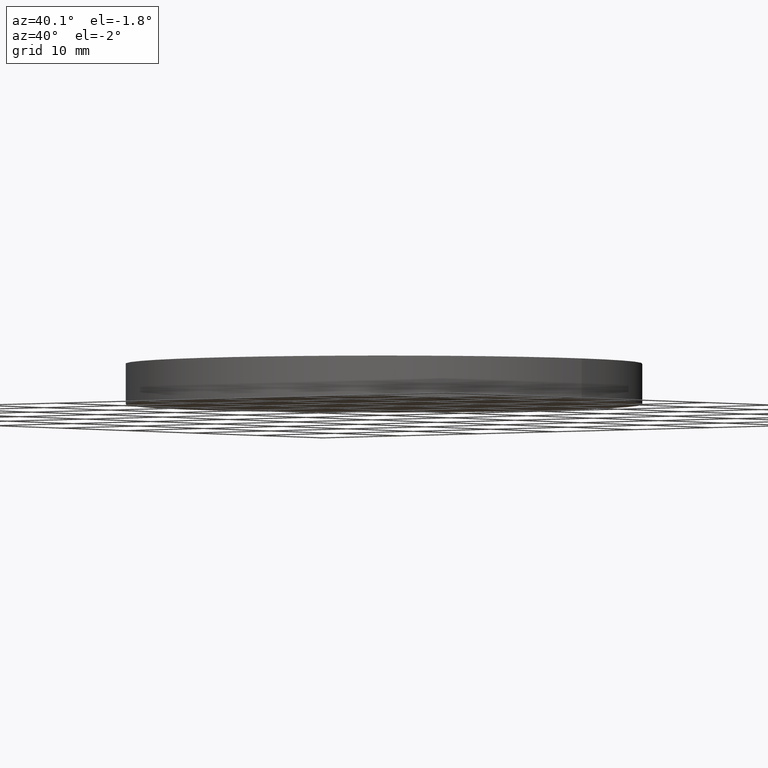
[diagram: clean part render]
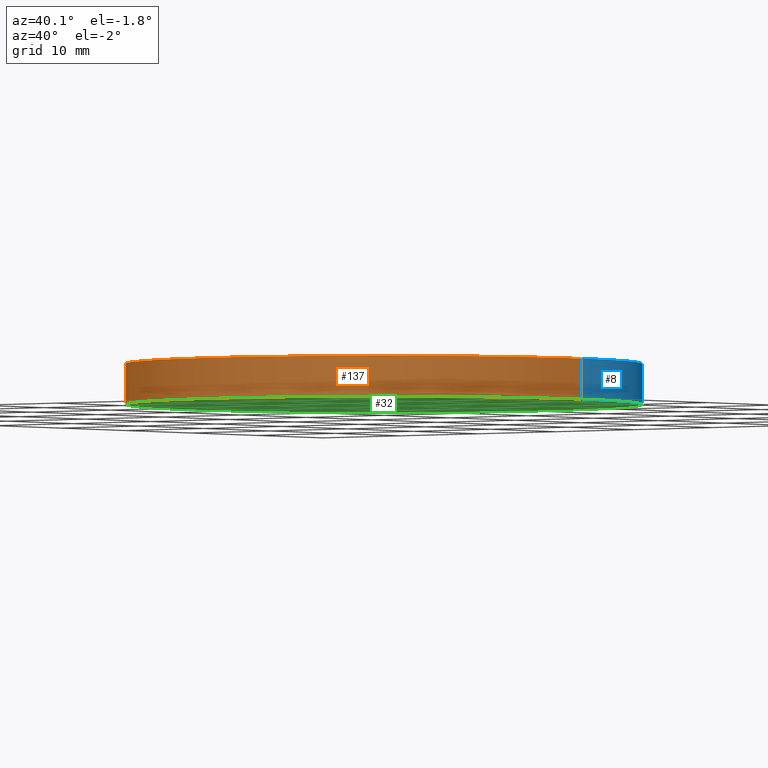
[diagram: same view with three faces highlighted in distinct colors, each labeled with its STEP entity id]
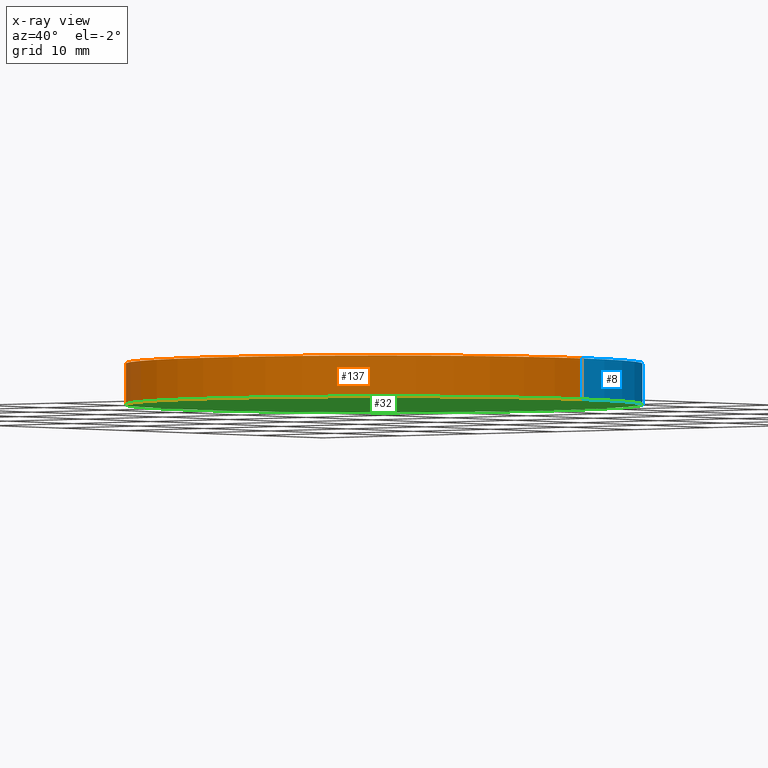
[diagram: x-ray of the same camera — body ghosted, the three highlighted faces saturated]
A machine part, auxiliary view with three faces highlighted in distinct colors.
The next image is the same camera in x-ray (body ghosted, the three faces saturated) — at least one of them is partly hidden behind the body in this view.
Their STEP definitions:

[orange] entity #137 — the highlighted cylindrical surface (partial cylindrical patch) has radius 25.4 mm, axis along (-0, -0, -1).
#1 = CIRCLE ( 'NONE', #42, 25.39999999999999900 ) ;
#7 = CARTESIAN_POINT ( 'NONE',  ( 0.0000000000000000000, 0.0000000000000000000, 4.000000000000000000 ) ) ;
#9 = ORIENTED_EDGE ( 'NONE', *, *, #27, .T. ) ;
#12 = CIRCLE ( 'NONE', #14, 25.39999999999999900 ) ;
#14 = AXIS2_PLACEMENT_3D ( 'NONE', #128, #25, #127 ) ;
#16 = LINE ( 'NONE', #90, #84 ) ;
#18 = DIRECTION ( 'NONE',  ( 0.0000000000000000000, 0.0000000000000000000, 1.000000000000000000 ) ) ;
#19 = CARTESIAN_POINT ( 'NONE',  ( -25.39999999999999900, 0.0000000000000000000, 4.000000000000000000 ) ) ;
#24 = DIRECTION ( 'NONE',  ( 1.000000000000000000, 0.0000000000000000000, 0.0000000000000000000 ) ) ;
#25 = DIRECTION ( 'NONE',  ( 0.0000000000000000000, 0.0000000000000000000, 1.000000000000000000 ) ) ;
#26 = VECTOR ( 'NONE', #54, 1000.000000000000000 ) ;
#27 = EDGE_CURVE ( 'NONE', #102, #50, #12, .T. ) ;
#38 = ORIENTED_EDGE ( 'NONE', *, *, #97, .T. ) ;
#39 = EDGE_LOOP ( 'NONE', ( #58, #79, #38, #9 ) ) ;
#42 = AXIS2_PLACEMENT_3D ( 'NONE', #7, #18, #24 ) ;
#46 = CARTESIAN_POINT ( 'NONE',  ( 25.39999999999999900, 3.110602869834276900E-015, 4.000000000000000000 ) ) ;
#50 = VERTEX_POINT ( 'NONE', #106 ) ;
#54 = DIRECTION ( 'NONE',  ( -0.0000000000000000000, -0.0000000000000000000, -1.000000000000000000 ) ) ;
#58 = ORIENTED_EDGE ( 'NONE', *, *, #87, .F. ) ;
#60 = DIRECTION ( 'NONE',  ( -0.0000000000000000000, -0.0000000000000000000, -1.000000000000000000 ) ) ;
#61 = AXIS2_PLACEMENT_3D ( 'NONE', #68, #60, #99 ) ;
#63 = CARTESIAN_POINT ( 'NONE',  ( -25.39999999999999900, 0.0000000000000000000, 0.0000000000000000000 ) ) ;
#66 = VERTEX_POINT ( 'NONE', #135 ) ;
#68 = CARTESIAN_POINT ( 'NONE',  ( 0.0000000000000000000, 0.0000000000000000000, 4.000000000000000000 ) ) ;
#69 = LINE ( 'NONE', #19, #26 ) ;
#79 = ORIENTED_EDGE ( 'NONE', *, *, #124, .F. ) ;
#84 = VECTOR ( 'NONE', #107, 1000.000000000000000 ) ;
#87 = EDGE_CURVE ( 'NONE', #109, #50, #16, .T. ) ;
#90 = CARTESIAN_POINT ( 'NONE',  ( 25.39999999999999900, 3.110602869834276900E-015, 4.000000000000000000 ) ) ;
#93 = FACE_OUTER_BOUND ( 'NONE', #39, .T. ) ;
#97 = EDGE_CURVE ( 'NONE', #66, #102, #69, .T. ) ;
#99 = DIRECTION ( 'NONE',  ( -1.000000000000000000, 0.0000000000000000000, 0.0000000000000000000 ) ) ;
#102 = VERTEX_POINT ( 'NONE', #63 ) ;
#106 = CARTESIAN_POINT ( 'NONE',  ( 25.39999999999999900, 3.110602869834276900E-015, 0.0000000000000000000 ) ) ;
#107 = DIRECTION ( 'NONE',  ( -0.0000000000000000000, -0.0000000000000000000, -1.000000000000000000 ) ) ;
#109 = VERTEX_POINT ( 'NONE', #46 ) ;
#122 = CYLINDRICAL_SURFACE ( 'NONE', #61, 25.39999999999999900 ) ;
#124 = EDGE_CURVE ( 'NONE', #66, #109, #1, .T. ) ;
#127 = DIRECTION ( 'NONE',  ( 1.000000000000000000, 0.0000000000000000000, 0.0000000000000000000 ) ) ;
#128 = CARTESIAN_POINT ( 'NONE',  ( 0.0000000000000000000, 0.0000000000000000000, 0.0000000000000000000 ) ) ;
#135 = CARTESIAN_POINT ( 'NONE',  ( -25.39999999999999900, 0.0000000000000000000, 4.000000000000000000 ) ) ;
#137 = ADVANCED_FACE ( 'NONE', ( #93 ), #122, .T. ) ;

[blue] entity #8 — the highlighted cylindrical surface (partial cylindrical patch) has radius 25.4 mm, axis along (-0, -0, -1).
#4 = DIRECTION ( 'NONE',  ( 0.0000000000000000000, 0.0000000000000000000, 1.000000000000000000 ) ) ;
#6 = CARTESIAN_POINT ( 'NONE',  ( 0.0000000000000000000, 0.0000000000000000000, 4.000000000000000000 ) ) ;
#8 = ADVANCED_FACE ( 'NONE', ( #73 ), #125, .T. ) ;
#15 = CARTESIAN_POINT ( 'NONE',  ( 0.0000000000000000000, 0.0000000000000000000, 0.0000000000000000000 ) ) ;
#16 = LINE ( 'NONE', #90, #84 ) ;
#19 = CARTESIAN_POINT ( 'NONE',  ( -25.39999999999999900, 0.0000000000000000000, 4.000000000000000000 ) ) ;
#22 = DIRECTION ( 'NONE',  ( 1.000000000000000000, 0.0000000000000000000, 0.0000000000000000000 ) ) ;
#26 = VECTOR ( 'NONE', #54, 1000.000000000000000 ) ;
#28 = AXIS2_PLACEMENT_3D ( 'NONE', #15, #80, #52 ) ;
#30 = CIRCLE ( 'NONE', #36, 25.39999999999999900 ) ;
#36 = AXIS2_PLACEMENT_3D ( 'NONE', #115, #4, #22 ) ;
#43 = EDGE_LOOP ( 'NONE', ( #117, #110, #89, #64 ) ) ;
#45 = CIRCLE ( 'NONE', #28, 25.39999999999999900 ) ;
#46 = CARTESIAN_POINT ( 'NONE',  ( 25.39999999999999900, 3.110602869834276900E-015, 4.000000000000000000 ) ) ;
#50 = VERTEX_POINT ( 'NONE', #106 ) ;
#51 = DIRECTION ( 'NONE',  ( -0.0000000000000000000, -0.0000000000000000000, -1.000000000000000000 ) ) ;
#52 = DIRECTION ( 'NONE',  ( 1.000000000000000000, 0.0000000000000000000, 0.0000000000000000000 ) ) ;
#54 = DIRECTION ( 'NONE',  ( -0.0000000000000000000, -0.0000000000000000000, -1.000000000000000000 ) ) ;
#63 = CARTESIAN_POINT ( 'NONE',  ( -25.39999999999999900, 0.0000000000000000000, 0.0000000000000000000 ) ) ;
#64 = ORIENTED_EDGE ( 'NONE', *, *, #97, .F. ) ;
#66 = VERTEX_POINT ( 'NONE', #135 ) ;
#69 = LINE ( 'NONE', #19, #26 ) ;
#72 = AXIS2_PLACEMENT_3D ( 'NONE', #6, #51, #140 ) ;
#73 = FACE_OUTER_BOUND ( 'NONE', #43, .T. ) ;
#80 = DIRECTION ( 'NONE',  ( 0.0000000000000000000, 0.0000000000000000000, 1.000000000000000000 ) ) ;
#84 = VECTOR ( 'NONE', #107, 1000.000000000000000 ) ;
#87 = EDGE_CURVE ( 'NONE', #109, #50, #16, .T. ) ;
#89 = ORIENTED_EDGE ( 'NONE', *, *, #104, .T. ) ;
#90 = CARTESIAN_POINT ( 'NONE',  ( 25.39999999999999900, 3.110602869834276900E-015, 4.000000000000000000 ) ) ;
#97 = EDGE_CURVE ( 'NONE', #66, #102, #69, .T. ) ;
#102 = VERTEX_POINT ( 'NONE', #63 ) ;
#104 = EDGE_CURVE ( 'NONE', #50, #102, #45, .T. ) ;
#106 = CARTESIAN_POINT ( 'NONE',  ( 25.39999999999999900, 3.110602869834276900E-015, 0.0000000000000000000 ) ) ;
#107 = DIRECTION ( 'NONE',  ( -0.0000000000000000000, -0.0000000000000000000, -1.000000000000000000 ) ) ;
#109 = VERTEX_POINT ( 'NONE', #46 ) ;
#110 = ORIENTED_EDGE ( 'NONE', *, *, #87, .T. ) ;
#111 = EDGE_CURVE ( 'NONE', #109, #66, #30, .T. ) ;
#115 = CARTESIAN_POINT ( 'NONE',  ( 0.0000000000000000000, 0.0000000000000000000, 4.000000000000000000 ) ) ;
#117 = ORIENTED_EDGE ( 'NONE', *, *, #111, .F. ) ;
#125 = CYLINDRICAL_SURFACE ( 'NONE', #72, 25.39999999999999900 ) ;
#135 = CARTESIAN_POINT ( 'NONE',  ( -25.39999999999999900, 0.0000000000000000000, 4.000000000000000000 ) ) ;
#140 = DIRECTION ( 'NONE',  ( -1.000000000000000000, 0.0000000000000000000, 0.0000000000000000000 ) ) ;

[green] entity #32 — the highlighted planar face has unit normal (0, 0, 1).
#3 = ORIENTED_EDGE ( 'NONE', *, *, #104, .F. ) ;
#11 = CARTESIAN_POINT ( 'NONE',  ( 0.0000000000000000000, 0.0000000000000000000, 0.0000000000000000000 ) ) ;
#12 = CIRCLE ( 'NONE', #14, 25.39999999999999900 ) ;
#14 = AXIS2_PLACEMENT_3D ( 'NONE', #128, #25, #127 ) ;
#15 = CARTESIAN_POINT ( 'NONE',  ( 0.0000000000000000000, 0.0000000000000000000, 0.0000000000000000000 ) ) ;
#21 = FACE_OUTER_BOUND ( 'NONE', #119, .T. ) ;
#25 = DIRECTION ( 'NONE',  ( 0.0000000000000000000, 0.0000000000000000000, 1.000000000000000000 ) ) ;
#27 = EDGE_CURVE ( 'NONE', #102, #50, #12, .T. ) ;
#28 = AXIS2_PLACEMENT_3D ( 'NONE', #15, #80, #52 ) ;
#32 = ADVANCED_FACE ( 'NONE', ( #21 ), #121, .F. ) ;
#45 = CIRCLE ( 'NONE', #28, 25.39999999999999900 ) ;
#48 = DIRECTION ( 'NONE',  ( 0.0000000000000000000, 0.0000000000000000000, 1.000000000000000000 ) ) ;
#50 = VERTEX_POINT ( 'NONE', #106 ) ;
#52 = DIRECTION ( 'NONE',  ( 1.000000000000000000, 0.0000000000000000000, 0.0000000000000000000 ) ) ;
#63 = CARTESIAN_POINT ( 'NONE',  ( -25.39999999999999900, 0.0000000000000000000, 0.0000000000000000000 ) ) ;
#65 = ORIENTED_EDGE ( 'NONE', *, *, #27, .F. ) ;
#67 = AXIS2_PLACEMENT_3D ( 'NONE', #11, #48, #105 ) ;
#80 = DIRECTION ( 'NONE',  ( 0.0000000000000000000, 0.0000000000000000000, 1.000000000000000000 ) ) ;
#102 = VERTEX_POINT ( 'NONE', #63 ) ;
#104 = EDGE_CURVE ( 'NONE', #50, #102, #45, .T. ) ;
#105 = DIRECTION ( 'NONE',  ( 1.000000000000000000, 0.0000000000000000000, -0.0000000000000000000 ) ) ;
#106 = CARTESIAN_POINT ( 'NONE',  ( 25.39999999999999900, 3.110602869834276900E-015, 0.0000000000000000000 ) ) ;
#119 = EDGE_LOOP ( 'NONE', ( #65, #3 ) ) ;
#121 = PLANE ( 'NONE',  #67 ) ;
#127 = DIRECTION ( 'NONE',  ( 1.000000000000000000, 0.0000000000000000000, 0.0000000000000000000 ) ) ;
#128 = CARTESIAN_POINT ( 'NONE',  ( 0.0000000000000000000, 0.0000000000000000000, 0.0000000000000000000 ) ) ;